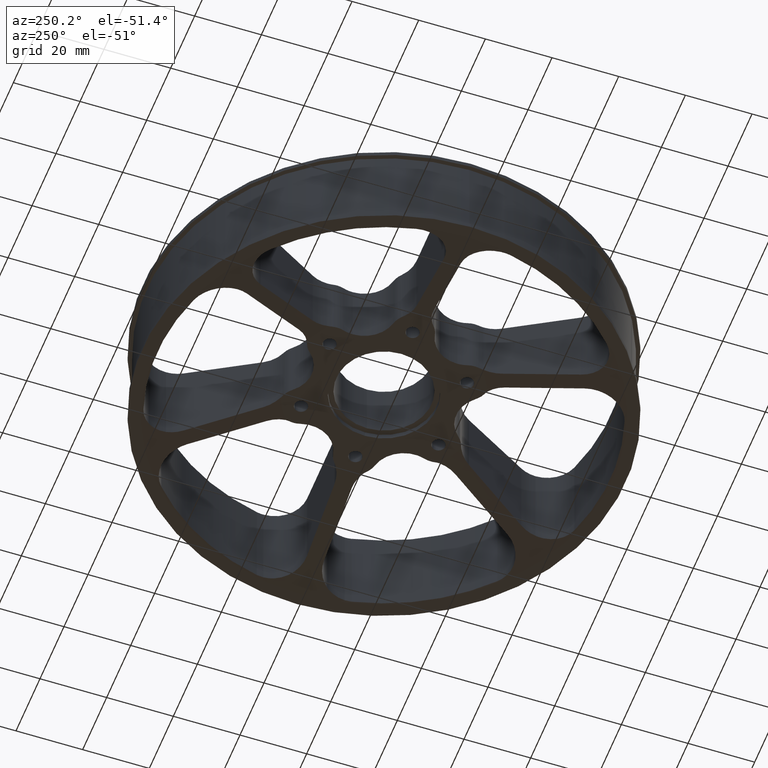
[diagram: clean part render]
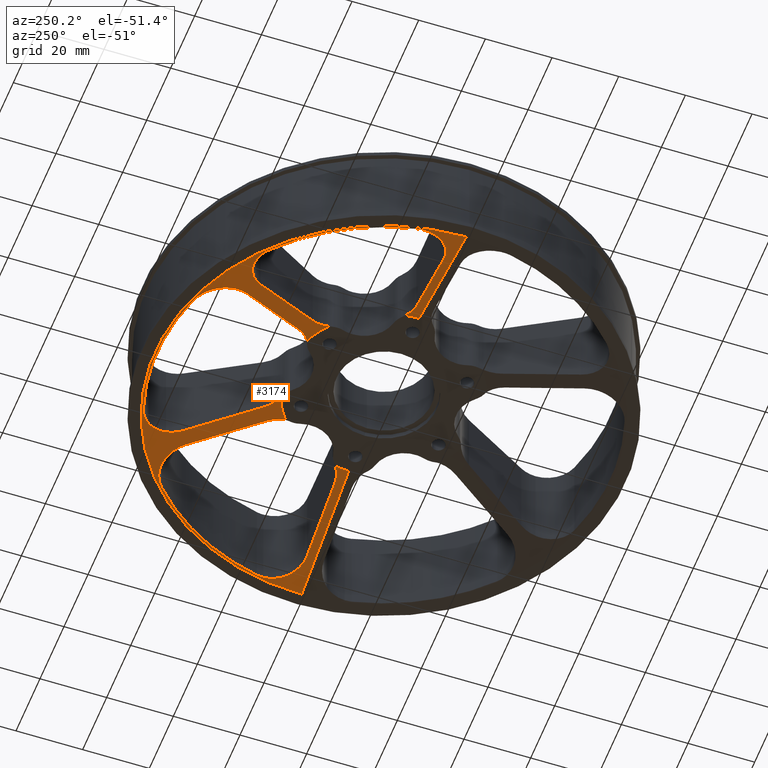
[diagram: same view with one face highlighted and labeled with its STEP entity id]
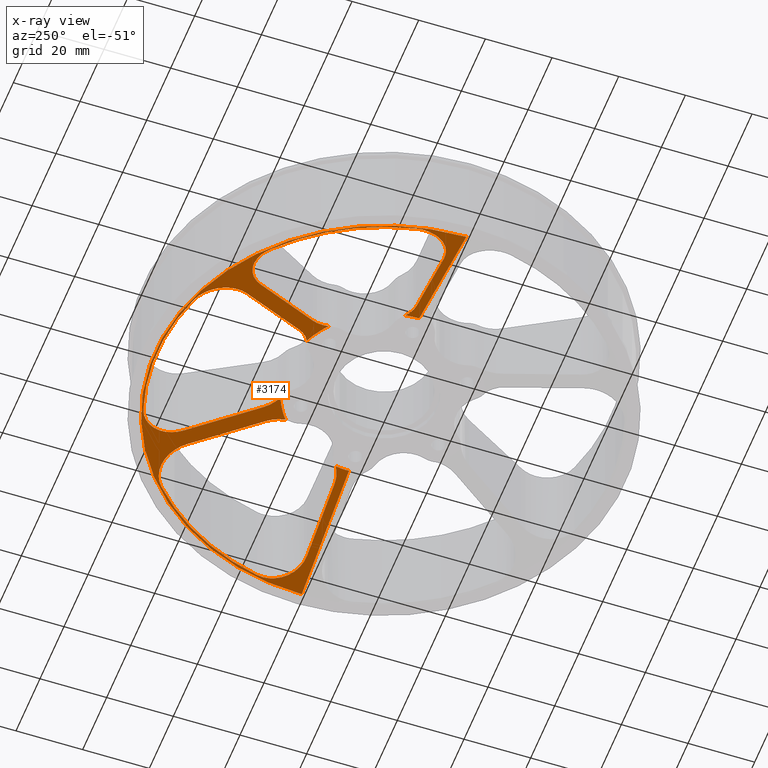
[diagram: x-ray of the same camera — body ghosted, the highlighted face saturated]
A machine part, auxiliary view. The second image highlights one B-rep face of the part: STEP entity #3174.
The next image is the same camera in x-ray: the body ghosted, the highlighted face saturated — about 0% of this face is hidden behind the body in this view.
In plain terms, the highlighted conical surface has half-angle 76.483 deg.
Its self-contained STEP definition (entity closure, byte-faithful):
#39 = CARTESIAN_POINT ( 'NONE',  ( -2.555788964295271803, 0.2606129922915251251, 0.03149898300721003935 ) ) ;
#41 = CARTESIAN_POINT ( 'NONE',  ( 1.381725332369270864, 2.050315321934899515, 0.05470492884179446735 ) ) ;
#73 = CARTESIAN_POINT ( 'NONE',  ( -2.571170166449327166, 0.2842102808367405475, 0.02723059828186738876 ) ) ;
#87 = CARTESIAN_POINT ( 'NONE',  ( -0.8233977797112138619, 2.545121037665328600, 0.006009615384616089247 ) ) ;
#112 = ORIENTED_EDGE ( 'NONE', *, *, #2547, .T. ) ;
#133 = CARTESIAN_POINT ( 'NONE',  ( 0.9141892401480412600, 2.502376442344148799, 0.008637521523666097031 ) ) ;
#140 = VERTEX_POINT ( 'NONE', #1234 ) ;
#147 = CARTESIAN_POINT ( 'NONE',  ( 4.558505688762623135E-17, 0.0000000000000000000, 0.3722302374804257186 ) ) ;
#155 = B_SPLINE_CURVE_WITH_KNOTS ( 'NONE', 3,
 ( #3402, #3881, #3978, #1712 ),
 .UNSPECIFIED., .F., .F.,
 ( 4, 4 ),
 ( 0.0003973831653409004355, 0.0008551513178443858601 ),
 .UNSPECIFIED. ) ;
#161 = VERTEX_POINT ( 'NONE', #1089 ) ;
#163 = CARTESIAN_POINT ( 'NONE',  ( -0.4476755617751262961, 1.076023273333025276, 0.3689003626230653587 ) ) ;
#176 = CARTESIAN_POINT ( 'NONE',  ( -1.345544115262072626, 0.1000000000000190598, 0.3246983252277153564 ) ) ;
#182 = ORIENTED_EDGE ( 'NONE', *, *, #2157, .T. ) ;
#186 = B_SPLINE_CURVE_WITH_KNOTS ( 'NONE', 3,
 ( #1582, #1717, #3155, #2220 ),
 .UNSPECIFIED., .F., .F.,
 ( 4, 4 ),
 ( 2.374831638880802619E-07, 0.02347532646394983810 ),
 .UNSPECIFIED. ) ;
#194 = CARTESIAN_POINT ( 'NONE',  ( -2.244242633941287313, 0.1000000000000318828, 0.1090217662803164567 ) ) ;
#202 = AXIS2_PLACEMENT_3D ( 'NONE', #3841, #535, #1473 ) ;
#203 = CARTESIAN_POINT ( 'NONE',  ( 2.620761240561458649, 0.5330270238740025812, 0.006157654140609909385 ) ) ;
#237 = ORIENTED_EDGE ( 'NONE', *, *, #2011, .T. ) ;
#256 = CARTESIAN_POINT ( 'NONE',  ( 2.341393350974212417, 0.1124217870913343936, 0.08555555233835339390 ) ) ;
#269 = CARTESIAN_POINT ( 'NONE',  ( 2.611705648250460143, 0.3799193324006487904, 0.01464270025597614808 ) ) ;
#274 = ORIENTED_EDGE ( 'NONE', *, *, #2128, .T. ) ;
#279 = B_SPLINE_CURVE_WITH_KNOTS ( 'NONE', 3,
 ( #2291, #2562, #1938, #517, #2256, #1796, #1680, #3945, #2889, #1362, #2292, #73, #39, #3350, #1021, #1346, #1814, #3208, #3433, #3760, #3099, #3631, #835, #521, #2773, #194 ),
 .UNSPECIFIED., .F., .F.,
 ( 4, 2, 2, 2, 2, 2, 2, 2, 2, 2, 2, 2, 4 ),
 ( 0.0000000000000000000, 0.002168415278682751714, 0.003252622918024124753, 0.004336830557365498225, 0.005421038196706870829, 0.006505245836048244301, 0.008673661114730996449, 0.009757868754072371656, 0.01084207639341374686, 0.01192628403275512207, 0.01301049167209649901, 0.01517890695077923381, 0.01734732222946196861 ),
 .UNSPECIFIED. ) ;
#280 = CARTESIAN_POINT ( 'NONE',  ( -0.7084642514475504305, 0.9252753857296316387, 0.3689046500688185071 ) ) ;
#282 = CIRCLE ( 'NONE', #847, 1.151522212081429908 ) ;
#287 = CARTESIAN_POINT ( 'NONE',  ( -1.273821146060780896, 0.1050872652487099962, 0.3418077900335013686 ) ) ;
#295 = CARTESIAN_POINT ( 'NONE',  ( -1.086278545085821667, 2.165913694325851679, 0.06657530022539948078 ) ) ;
#299 = ORIENTED_EDGE ( 'NONE', *, *, #2631, .T. ) ;
#314 = CARTESIAN_POINT ( 'NONE',  ( -1.368279890436731705, 2.044821805714164942, 0.05761208094328056778 ) ) ;
#326 = CARTESIAN_POINT ( 'NONE',  ( -1.747095290854518312, 2.021071717274952828, 0.006852893376929294726 ) ) ;
#329 = CIRCLE ( 'NONE', #1202, 2.700000000000000178 ) ;
#338 = EDGE_CURVE ( 'NONE', #1940, #2976, #3905, .T. ) ;
#342 = CARTESIAN_POINT ( 'NONE',  ( 1.574472117804343707, 2.082068098814433998, 0.02155503792358540519 ) ) ;
#378 = CARTESIAN_POINT ( 'NONE',  ( 1.344578831383624662, 2.031069387294142103, 0.06351105622040939536 ) ) ;
#392 = CARTESIAN_POINT ( 'NONE',  ( -1.052197010266879840, 2.343684665937414646, 0.03149898300720559152 ) ) ;
#401 = LINE ( 'NONE', #761, #2870 ) ;
#409 = CARTESIAN_POINT ( 'NONE',  ( -0.9590584314777077513, 2.467788912873300600, 0.01260446237046861442 ) ) ;
#413 = VERTEX_POINT ( 'NONE', #280 ) ;
#441 = CARTESIAN_POINT ( 'NONE',  ( -1.645127561281805484, 0.1000000000000233341, 0.2528811371054699442 ) ) ;
#444 = CARTESIAN_POINT ( 'NONE',  ( 0.7080257088821094724, 0.9257100458173149748, 0.3689003626230533683 ) ) ;
#446 = CARTESIAN_POINT ( 'NONE',  ( 1.140327317150179987, 0.1601780717763269801, 0.3722302374804254965 ) ) ;
#454 = CARTESIAN_POINT ( 'NONE',  ( -2.244242633941287313, 0.1000000000000318828, 0.1090217662803164567 ) ) ;
#479 = DIRECTION ( 'NONE',  ( 1.224646799147353454E-16, 0.0000000000000000000, 1.000000000000000000 ) ) ;
#499 = CARTESIAN_POINT ( 'NONE',  ( 2.700000000000000622, 3.306546357697854719E-16, -6.499484351137624458E-17 ) ) ;
#517 = CARTESIAN_POINT ( 'NONE',  ( -2.623992239664214576, 0.4601757916786723412, 0.008653585715786050320 ) ) ;
#518 = CARTESIAN_POINT ( 'NONE',  ( 2.329482037502598857, 0.1094814179886505062, 0.08844888549081507401 ) ) ;
#521 = CARTESIAN_POINT ( 'NONE',  ( -2.300342110028505083, 0.1031411890781242097, 0.09551724985832107939 ) ) ;
#535 = DIRECTION ( 'NONE',  ( 1.224646799147353454E-16, 0.0000000000000000000, 1.000000000000000000 ) ) ;
#551 = CARTESIAN_POINT ( 'NONE',  ( 2.624242633941351599, 0.4932295854747925645, 0.007173029918984138824 ) ) ;
#562 = EDGE_LOOP ( 'NONE', ( #2384, #1794, #3365, #867, #299, #3346, #1458, #2262, #3628, #1673, #237, #1472, #2190, #2006, #3245, #2533, #769, #3784, #3000, #1219, #112, #3469, #1724, #2314, #274, #2125, #1654, #182, #2564, #787, #3656 ) ) ;
#582 = VERTEX_POINT ( 'NONE', #1534 ) ;
#603 = VERTEX_POINT ( 'NONE', #499 ) ;
#606 = CARTESIAN_POINT ( 'NONE',  ( 2.589795439424716683, 0.3214145950295715370, 0.02172069477104322105 ) ) ;
#622 = CARTESIAN_POINT ( 'NONE',  ( -1.221825952857052977, 0.1202504314963653703, 0.3539155783737000238 ) ) ;
#634 = CARTESIAN_POINT ( 'NONE',  ( -1.222759472270234182, 1.917881531408228257, 0.1022805633555092797 ) ) ;
#636 = EDGE_CURVE ( 'NONE', #1872, #1767, #3505, .T. ) ;
#637 = AXIS2_PLACEMENT_3D ( 'NONE', #823, #3127, #2141 ) ;
#641 = B_SPLINE_CURVE_WITH_KNOTS ( 'NONE', 3,
 ( #936, #3199, #287, #622, #3664, #3467, #1391, #3334 ),
 .UNSPECIFIED., .F., .F.,
 ( 4, 2, 2, 4 ),
 ( 2.027963866919312708E-07, 0.002802592206002641612, 0.004203786910810616319, 0.005604981615618591026 ),
 .UNSPECIFIED. ) ;
#648 = CARTESIAN_POINT ( 'NONE',  ( -1.657391477001412872, 2.064548760629061341, 0.01262575695546966185 ) ) ;
#653 = VERTEX_POINT ( 'NONE', #1249 ) ;
#656 = CARTESIAN_POINT ( 'NONE',  ( -1.710199043874776947, 2.042518632831004766, 0.008673133990505066393 ) ) ;
#666 = CARTESIAN_POINT ( 'NONE',  ( 1.503591954028382194, 2.083071673645878086, 0.03149898300720527927 ) ) ;
#688 = CARTESIAN_POINT ( 'NONE',  ( 1.140327317150179987, 0.1601780717763269801, 0.3722302374804254965 ) ) ;
#694 = CARTESIAN_POINT ( 'NONE',  ( 1.239493944932458014, 1.940584110140775032, 0.09551724985830763182 ) ) ;
#699 = CIRCLE ( 'NONE', #202, 2.674999999999999378 ) ;
#709 = DIRECTION ( 'NONE',  ( 1.224646799147353454E-16, 0.0000000000000000000, 1.000000000000000000 ) ) ;
#732 = B_SPLINE_CURVE_WITH_KNOTS ( 'NONE', 3,
 ( #3164, #871, #4134, #2203 ),
 .UNSPECIFIED., .F., .F.,
 ( 4, 4 ),
 ( 0.01120379814011731277, 0.03467888712090324427 ),
 .UNSPECIFIED. ) ;
#751 = CARTESIAN_POINT ( 'NONE',  ( 0.5861695172526181219, 1.215275385729601254, 0.3246983252277149679 ) ) ;
#761 = CARTESIAN_POINT ( 'NONE',  ( -1.139999999999999902, 0.0000000000000000000, 0.3750000000000002776 ) ) ;
#769 = ORIENTED_EDGE ( 'NONE', *, *, #338, .T. ) ;
#770 = CARTESIAN_POINT ( 'NONE',  ( 1.086429123154184717, 2.203108526128852773, 0.05855579799661336099 ) ) ;
#787 = ORIENTED_EDGE ( 'NONE', *, *, #2903, .T. ) ;
#815 = VERTEX_POINT ( 'NONE', #3301 ) ;
#820 = EDGE_CURVE ( 'NONE', #2714, #1090, #279, .T. ) ;
#823 = CARTESIAN_POINT ( 'NONE',  ( 7.359656244876656570E-19, 0.0000000000000000000, 0.006009615384615988633 ) ) ;
#826 = CIRCLE ( 'NONE', #1073, 1.151522212081429908 ) ;
#835 = CARTESIAN_POINT ( 'NONE',  ( -2.354484225925956409, 0.1152857200719954872, 0.08237978376799647007 ) ) ;
#843 = CARTESIAN_POINT ( 'NONE',  ( 1.084931786460719305, 2.222682874519118279, 0.05449247516796908164 ) ) ;
#847 = AXIS2_PLACEMENT_3D ( 'NONE', #2243, #2595, #1508 ) ;
#860 = CARTESIAN_POINT ( 'NONE',  ( -1.792440584468713016, 1.985643913482338263, 0.006009615384616208943 ) ) ;
#867 = ORIENTED_EDGE ( 'NONE', *, *, #1664, .T. ) ;
#868 = CARTESIAN_POINT ( 'NONE',  ( 0.9091666662923786335, 1.374722858566401973, 0.2528809715653633217 ) ) ;
#871 = CARTESIAN_POINT ( 'NONE',  ( -0.8857410842204423984, 1.734148560221015156, 0.1809588936208282872 ) ) ;
#879 = CARTESIAN_POINT ( 'NONE',  ( 1.064825852095272918, 2.053001967520292848, 0.09309883668905098719 ) ) ;
#890 = CIRCLE ( 'NONE', #1126, 1.151522212081429908 ) ;
#891 = VERTEX_POINT ( 'NONE', #3072 ) ;
#903 = CARTESIAN_POINT ( 'NONE',  ( 2.269050318731649529, 0.09999999999998372691, 0.1030642917341123010 ) ) ;
#918 = CARTESIAN_POINT ( 'NONE',  ( 2.584390022171942025, 0.3101239939709281579, 0.02333883839362279472 ) ) ;
#922 = CARTESIAN_POINT ( 'NONE',  ( 0.9619943729157190981, 2.465503608340019248, 0.01286771057395602082 ) ) ;
#936 = CARTESIAN_POINT ( 'NONE',  ( -1.345544115262072626, 0.1000000000000190598, 0.3246983252277153564 ) ) ;
#937 = CARTESIAN_POINT ( 'NONE',  ( -1.208723857349086606, 1.893571133249328353, 0.1090217662803020376 ) ) ;
#960 = CARTESIAN_POINT ( 'NONE',  ( 1.086429123154184495, 2.183571133249294416, 0.06276058290869376832 ) ) ;
#963 = CARTESIAN_POINT ( 'NONE',  ( -1.588392053333445242, 2.081256917785137883, 0.01970530602920997007 ) ) ;
#989 = CARTESIAN_POINT ( 'NONE',  ( 1.671089567941404619, 2.059723331815689562, 0.01146111758689605416 ) ) ;
#1006 = VERTEX_POINT ( 'NONE', #3955 ) ;
#1007 = CARTESIAN_POINT ( 'NONE',  ( -1.085907858099138146, 2.207874167034138413, 0.05758182101409867193 ) ) ;
#1018 = CARTESIAN_POINT ( 'NONE',  ( 1.277082475238925152, 1.981400292425664844, 0.08237978376798460456 ) ) ;
#1021 = CARTESIAN_POINT ( 'NONE',  ( -2.519408256572005289, 0.2175422561166451552, 0.04116182191689277819 ) ) ;
#1033 = DIRECTION ( 'NONE',  ( -1.000000000000000000, -7.105427357601001859E-15, 1.224704050897968723E-16 ) ) ;
#1035 = CARTESIAN_POINT ( 'NONE',  ( -0.7088819378625879075, 0.9074633893932535500, 0.3722302374804257186 ) ) ;
#1042 = CARTESIAN_POINT ( 'NONE',  ( 0.7593745980094865899, 1.115275385729609159, 0.3246983252277150234 ) ) ;
#1043 = CARTESIAN_POINT ( 'NONE',  ( 0.9901614705514879544, 2.437136652271250092, 0.01669811749998362238 ) ) ;
#1053 = B_SPLINE_CURVE_WITH_KNOTS ( 'NONE', 3,
 ( #1937, #3883, #3061, #1131 ),
 .UNSPECIFIED., .F., .F.,
 ( 4, 4 ),
 ( 0.03513682589285246904, 0.05857677452416296809 ),
 .UNSPECIFIED. ) ;
#1073 = AXIS2_PLACEMENT_3D ( 'NONE', #1991, #3545, #3281 ) ;
#1089 = CARTESIAN_POINT ( 'NONE',  ( -0.7593745980094609438, 1.115275385729627144, 0.3246983252277151899 ) ) ;
#1090 = VERTEX_POINT ( 'NONE', #3796 ) ;
#1093 = CARTESIAN_POINT ( 'NONE',  ( 1.086429123154184495, 2.183571133249294416, 0.06276058290869376832 ) ) ;
#1095 = CARTESIAN_POINT ( 'NONE',  ( 1.054667861080543778, 2.336953425988994582, 0.03272314577106618522 ) ) ;
#1096 = VERTEX_POINT ( 'NONE', #2841 ) ;
#1126 = AXIS2_PLACEMENT_3D ( 'NONE', #3806, #3468, #2465 ) ;
#1130 = EDGE_CURVE ( 'NONE', #3830, #582, #3840, .T. ) ;
#1131 = CARTESIAN_POINT ( 'NONE',  ( 2.244242633941349041, 0.09999999999998378242, 0.1090217662803016074 ) ) ;
#1139 = CIRCLE ( 'NONE', #3460, 2.674999999999999378 ) ;
#1154 = DIRECTION ( 'NONE',  ( -0.9723023748042558534, 0.0000000000000000000, -0.2337265324048689308 ) ) ;
#1165 = B_SPLINE_CURVE_WITH_KNOTS ( 'NONE', 3,
 ( #751, #2351, #1721, #3314 ),
 .UNSPECIFIED., .F., .F.,
 ( 4, 4 ),
 ( 2.374831638847536988E-07, 0.02347532646394984157 ),
 .UNSPECIFIED. ) ;
#1175 = CARTESIAN_POINT ( 'NONE',  ( 0.8233977797113042341, 2.545121037665299291, 0.006009615384615888886 ) ) ;
#1187 = CARTESIAN_POINT ( 'NONE',  ( -1.151522212081429908, 0.0000000000000000000, 0.3722302374804258851 ) ) ;
#1190 = CARTESIAN_POINT ( 'NONE',  ( 4.592425496802577300E-17, 0.0000000000000000000, 0.3750000000000001665 ) ) ;
#1202 = AXIS2_PLACEMENT_3D ( 'NONE', #1816, #3534, #3200 ) ;
#1218 = CARTESIAN_POINT ( 'NONE',  ( 1.256060949214086842, 0.1102402044935202607, 0.3459443339627557013 ) ) ;
#1219 = ORIENTED_EDGE ( 'NONE', *, *, #2819, .T. ) ;
#1227 = CARTESIAN_POINT ( 'NONE',  ( 1.792440584468755649, 1.985643913482299183, 0.006009615384615769190 ) ) ;
#1228 = VERTEX_POINT ( 'NONE', #2937 ) ;
#1230 = CARTESIAN_POINT ( 'NONE',  ( 2.493144026092791510, 0.1925905895674134283, 0.04794196000281365777 ) ) ;
#1231 = B_SPLINE_CURVE_WITH_KNOTS ( 'NONE', 3,
 ( #454, #1939, #441, #3762 ),
 .UNSPECIFIED., .F., .F.,
 ( 4, 4 ),
 ( 0.07311557283823139075, 0.09659070307451070314 ),
 .UNSPECIFIED. ) ;
#1234 = CARTESIAN_POINT ( 'NONE',  ( 0.5861695172526181219, 1.215275385729601254, 0.3246983252277149679 ) ) ;
#1236 = CARTESIAN_POINT ( 'NONE',  ( 1.074200106125244414, 2.281203584867760092, 0.04292510599061973020 ) ) ;
#1237 = CARTESIAN_POINT ( 'NONE',  ( 1.086429123154184495, 2.183571133249294416, 0.06276058290869376832 ) ) ;
#1245 = CARTESIAN_POINT ( 'NONE',  ( 2.565835537136702094, 0.2771843271920144680, 0.02866674391365928512 ) ) ;
#1249 = CARTESIAN_POINT ( 'NONE',  ( 2.615838364180005815, 0.5594771241829875619, 0.006009615384615668576 ) ) ;
#1261 = CARTESIAN_POINT ( 'NONE',  ( 0.4314453792875962423, 1.067641461169568595, 0.3722302374804256075 ) ) ;
#1262 = DIRECTION ( 'NONE',  ( -1.224646799147353454E-16, -0.0000000000000000000, -1.000000000000000000 ) ) ;
#1274 = CARTESIAN_POINT ( 'NONE',  ( 0.4314453792875962423, 1.067641461169568595, 0.3722302374804256075 ) ) ;
#1287 = CARTESIAN_POINT ( 'NONE',  ( -0.8767949800902229418, 2.524432577122647903, 0.006678401742229601173 ) ) ;
#1289 = CARTESIAN_POINT ( 'NONE',  ( 1.077712681762480473, 2.100971800952537993, 0.08142859237052434140 ) ) ;
#1290 = CARTESIAN_POINT ( 'NONE',  ( -1.531552464191710428, 2.083784013882288733, 0.02739028061926878158 ) ) ;
#1313 = CARTESIAN_POINT ( 'NONE',  ( 1.657638673986983502, 2.064463421810022847, 0.01260446237046811309 ) ) ;
#1323 = CARTESIAN_POINT ( 'NONE',  ( 0.7084858649700268574, 0.9438525127013090987, 0.3653517119369740773 ) ) ;
#1331 = CARTESIAN_POINT ( 'NONE',  ( -1.080937959262898485, 2.249436021509337635, 0.04911969333429189871 ) ) ;
#1346 = CARTESIAN_POINT ( 'NONE',  ( -2.499128953314377011, 0.1978065355141498116, 0.04641134710570669203 ) ) ;
#1352 = CARTESIAN_POINT ( 'NONE',  ( 1.035518776592268209, 1.993571133249289140, 0.1090217662803016352 ) ) ;
#1362 = CARTESIAN_POINT ( 'NONE',  ( -2.596028397052802195, 0.3356126883065520539, 0.01980712311060918440 ) ) ;
#1366 = CARTESIAN_POINT ( 'NONE',  ( 0.5325596656303365206, 1.142900801905402774, 0.3459443311389592268 ) ) ;
#1391 = CARTESIAN_POINT ( 'NONE',  ( -1.155701270126328728, 0.1503132278564512370, 0.3689003627380586514 ) ) ;
#1392 = B_SPLINE_CURVE_WITH_KNOTS ( 'NONE', 3,
 ( #3149, #903, #2512, #518, #256, #2193, #4123, #1867, #3166, #1554, #3494, #1230, #3828, #2768, #3183, #1245, #3511, #918, #606, #2524, #269, #2207, #4137, #1880 ),
 .UNSPECIFIED., .F., .F.,
 ( 4, 2, 2, 2, 2, 2, 2, 2, 2, 2, 2, 4 ),
 ( 7.269816092100958512E-18, 0.001916703983936893620, 0.002875055975905326661, 0.003833407967873759484, 0.005750111951810624698, 0.006708463943779057088, 0.007666815935747490346, 0.009583519919684355126, 0.01054187191165278058, 0.01150022390362120256, 0.01341692788755806387, 0.01533363187149492692 ),
 .UNSPECIFIED. ) ;
#1403 = CARTESIAN_POINT ( 'NONE',  ( -1.035518776592196488, 1.993571133249324667, 0.1090217662803022319 ) ) ;
#1420 = DIRECTION ( 'NONE',  ( -1.000000000000000000, -2.664535259100375697E-15, 1.186189881967765580E-16 ) ) ;
#1421 = CARTESIAN_POINT ( 'NONE',  ( 0.8614897534448133776, 2.531073283054637191, 0.006347703254778879096 ) ) ;
#1429 = CARTESIAN_POINT ( 'NONE',  ( -0.5861695172525729358, 1.215275385729623014, 0.3246983252277151899 ) ) ;
#1448 = CARTESIAN_POINT ( 'NONE',  ( -0.7300619304692705924, 1.055897760618339953, 0.3404668134742429575 ) ) ;
#1458 = ORIENTED_EDGE ( 'NONE', *, *, #3843, .T. ) ;
#1460 = VERTEX_POINT ( 'NONE', #860 ) ;
#1462 = CARTESIAN_POINT ( 'NONE',  ( 1.309434701709074389, 0.1012914432548026600, 0.3333315988734063540 ) ) ;
#1472 = ORIENTED_EDGE ( 'NONE', *, *, #2210, .T. ) ;
#1473 = DIRECTION ( 'NONE',  ( -1.000000000000000000, 7.105427357601001859E-15, 1.224704050897968723E-16 ) ) ;
#1491 = CARTESIAN_POINT ( 'NONE',  ( 1.036333790412315325, 2.372417308647428946, 0.02671221852332348809 ) ) ;
#1508 = DIRECTION ( 'NONE',  ( -1.000000000000000000, 0.0000000000000000000, 1.186189881967765580E-16 ) ) ;
#1533 = EDGE_CURVE ( 'NONE', #2976, #1872, #732, .T. ) ;
#1534 = CARTESIAN_POINT ( 'NONE',  ( 0.7088819378626094458, 0.9074633893932365636, 0.3722302374804256075 ) ) ;
#1540 = VERTEX_POINT ( 'NONE', #1227 ) ;
#1554 = CARTESIAN_POINT ( 'NONE',  ( 2.463722134100568617, 0.1695474053259844738, 0.05539864163893562510 ) ) ;
#1566 = CARTESIAN_POINT ( 'NONE',  ( 0.7412398138127331837, 1.083865018116535905, 0.3333929926101628638 ) ) ;
#1582 = CARTESIAN_POINT ( 'NONE',  ( -0.7593745980094609438, 1.115275385729627144, 0.3246983252277151899 ) ) ;
#1585 = VERTEX_POINT ( 'NONE', #2535 ) ;
#1587 = CARTESIAN_POINT ( 'NONE',  ( -1.060848165096077267, 2.043725299218898783, 0.09551724985830808978 ) ) ;
#1596 = CARTESIAN_POINT ( 'NONE',  ( -1.343822811761050451, 2.031509597719318272, 0.06352635243648648011 ) ) ;
#1609 = CARTESIAN_POINT ( 'NONE',  ( -1.489240781014748105, 2.080714945174424457, 0.03395844962253762034 ) ) ;
#1611 = CARTESIAN_POINT ( 'NONE',  ( 1.058946164977367488, 1.634148560220995083, 0.1809588936208280097 ) ) ;
#1634 = CARTESIAN_POINT ( 'NONE',  ( 1.710520045632442310, 2.042356043043110692, 0.008653585715784943566 ) ) ;
#1642 = CARTESIAN_POINT ( 'NONE',  ( 0.7150529029939101111, 0.9980070904861664260, 0.3539155801993228434 ) ) ;
#1652 = CARTESIAN_POINT ( 'NONE',  ( -1.082767376362038014, 2.123913835814892792, 0.07597018140800188002 ) ) ;
#1654 = ORIENTED_EDGE ( 'NONE', *, *, #2060, .T. ) ;
#1664 = EDGE_CURVE ( 'NONE', #3277, #815, #1053, .T. ) ;
#1667 = CARTESIAN_POINT ( 'NONE',  ( -1.086668270553784010, 2.179974119016095280, 0.06351105622040970067 ) ) ;
#1673 = ORIENTED_EDGE ( 'NONE', *, *, #1130, .T. ) ;
#1676 = CARTESIAN_POINT ( 'NONE',  ( -1.039451760003318403, 2.368803822016174454, 0.02723059828186362788 ) ) ;
#1680 = CARTESIAN_POINT ( 'NONE',  ( -2.616697105464713236, 0.4033254910632784740, 0.01260446237046981485 ) ) ;
#1682 = CARTESIAN_POINT ( 'NONE',  ( 1.273795741522969260, 0.1064009748875603678, 0.3417726663184245672 ) ) ;
#1684 = CARTESIAN_POINT ( 'NONE',  ( 0.4931610981416740813, 1.105302345974090050, 0.3581113411067548546 ) ) ;
#1706 = B_SPLINE_CURVE_WITH_KNOTS ( 'NONE', 3,
 ( #1352, #3292, #879, #1289, #4112, #3225, #3139, #960 ),
 .UNSPECIFIED., .F., .F.,
 ( 4, 2, 2, 4 ),
 ( 7.949501638480626889E-18, 0.002582391569115759580, 0.003873587353673636768, 0.005164783138231513956 ),
 .UNSPECIFIED. ) ;
#1712 = CARTESIAN_POINT ( 'NONE',  ( -0.7084642514475504305, 0.9252753857296316387, 0.3689046500688185071 ) ) ;
#1717 = CARTESIAN_POINT ( 'NONE',  ( -0.9091666662923481024, 1.374722858566422845, 0.2528809715653633772 ) ) ;
#1721 = CARTESIAN_POINT ( 'NONE',  ( 0.8857410842205052370, 1.734148560220984292, 0.1809588936208278154 ) ) ;
#1724 = ORIENTED_EDGE ( 'NONE', *, *, #2179, .T. ) ;
#1728 = CARTESIAN_POINT ( 'NONE',  ( 0.8233977797113042341, 2.545121037665299291, 0.006009615384615888886 ) ) ;
#1746 = CARTESIAN_POINT ( 'NONE',  ( 1.171029754925200894, 0.1404775590272032693, 0.3655803360377239963 ) ) ;
#1767 = VERTEX_POINT ( 'NONE', #1903 ) ;
#1772 = CARTESIAN_POINT ( 'NONE',  ( -0.4926653701945993280, 1.106564567344613392, 0.3578734881116413247 ) ) ;
#1789 = CARTESIAN_POINT ( 'NONE',  ( 1.345544115262075291, 0.09999999999998830658, 0.3246983252277149123 ) ) ;
#1794 = ORIENTED_EDGE ( 'NONE', *, *, #3820, .T. ) ;
#1796 = CARTESIAN_POINT ( 'NONE',  ( -2.619317514090607535, 0.4173443519285852110, 0.01146111758689765184 ) ) ;
#1810 = CARTESIAN_POINT ( 'NONE',  ( -1.049544605678444542, 2.017864581844984517, 0.1022852634202533750 ) ) ;
#1814 = CARTESIAN_POINT ( 'NONE',  ( -2.488537718446307334, 0.1885982781180611523, 0.04911969333429887924 ) ) ;
#1816 = CARTESIAN_POINT ( 'NONE',  ( 2.549591630525159028E-32, 0.0000000000000000000, 2.081899558550500773E-16 ) ) ;
#1842 = CARTESIAN_POINT ( 'NONE',  ( 0.7593745980094865899, 1.115275385729609159, 0.3246983252277150234 ) ) ;
#1867 = CARTESIAN_POINT ( 'NONE',  ( 2.411104727554509886, 0.1377013564252795863, 0.06850480650287543716 ) ) ;
#1872 = VERTEX_POINT ( 'NONE', #1429 ) ;
#1880 = CARTESIAN_POINT ( 'NONE',  ( 2.624242633941350711, 0.4799999999999837730, 0.007745225043631117495 ) ) ;
#1883 = CARTESIAN_POINT ( 'NONE',  ( 1.062141725874128584, 2.318686401782258155, 0.03597412338323707770 ) ) ;
#1884 = CARTESIAN_POINT ( 'NONE',  ( -0.7084642514475505415, 0.9585563269289382182, 0.3625525926167544322 ) ) ;
#1903 = CARTESIAN_POINT ( 'NONE',  ( -0.4314453792875557192, 1.067641461169585027, 0.3722302374804257186 ) ) ;
#1910 = CARTESIAN_POINT ( 'NONE',  ( 1.448101248479610970, 2.073100424637317474, 0.04116182191688643605 ) ) ;
#1917 = CARTESIAN_POINT ( 'NONE',  ( -1.298426810186336100, 1.999021319697866117, 0.07603577902341975003 ) ) ;
#1931 = CARTESIAN_POINT ( 'NONE',  ( -1.447888800486290872, 2.073044976836471154, 0.04120193615354847405 ) ) ;
#1937 = CARTESIAN_POINT ( 'NONE',  ( 1.345544115262075291, 0.09999999999998830658, 0.3246983252277149123 ) ) ;
#1938 = CARTESIAN_POINT ( 'NONE',  ( -2.624620231974345685, 0.5028895618925083300, 0.006678401742229975874 ) ) ;
#1939 = CARTESIAN_POINT ( 'NONE',  ( -1.944686834526107910, 0.1000000000000276223, 0.1809589932027218795 ) ) ;
#1940 = VERTEX_POINT ( 'NONE', #87 ) ;
#1959 = CARTESIAN_POINT ( 'NONE',  ( 1.747825251884096209, 2.021543015230148566, 0.006678401742229207391 ) ) ;
#1972 = CARTESIAN_POINT ( 'NONE',  ( 1.420869961447045471, 2.065405893146413874, 0.04641134710569962823 ) ) ;
#1982 = AXIS2_PLACEMENT_3D ( 'NONE', #1190, #1262, #3439 ) ;
#1985 = CARTESIAN_POINT ( 'NONE',  ( 1.203800453185186470, 0.1255611367571705939, 0.3581113425542530315 ) ) ;
#1991 = CARTESIAN_POINT ( 'NONE',  ( 4.558505688762623135E-17, 0.0000000000000000000, 0.3722302374804257186 ) ) ;
#2001 = CARTESIAN_POINT ( 'NONE',  ( -1.067055953988727657, 2.304178896926665221, 0.03864379365982673759 ) ) ;
#2006 = ORIENTED_EDGE ( 'NONE', *, *, #3964, .T. ) ;
#2011 = EDGE_CURVE ( 'NONE', #582, #3179, #826, .T. ) ;
#2032 = VERTEX_POINT ( 'NONE', #1035 ) ;
#2060 = EDGE_CURVE ( 'NONE', #1090, #3530, #1231, .T. ) ;
#2090 = CARTESIAN_POINT ( 'NONE',  ( -0.5067730420216567389, 1.118257524286206950, 0.3539155801991348271 ) ) ;
#2092 = EDGE_CURVE ( 'NONE', #1540, #1006, #3816, .T. ) ;
#2125 = ORIENTED_EDGE ( 'NONE', *, *, #820, .T. ) ;
#2128 = EDGE_CURVE ( 'NONE', #1460, #2714, #1139, .T. ) ;
#2133 = B_SPLINE_CURVE_WITH_KNOTS ( 'NONE', 3,
 ( #3909, #1884, #2372, #1448, #3831, #3329 ),
 .UNSPECIFIED., .F., .F.,
 ( 4, 2, 4 ),
 ( 0.0008551513178443858601, 0.003428076719515962822, 0.006001002121187539243 ),
 .UNSPECIFIED. ) ;
#2138 = CARTESIAN_POINT ( 'NONE',  ( 2.618648427263342349, 0.5463386588169680813, 0.006009615384615545411 ) ) ;
#2141 = DIRECTION ( 'NONE',  ( -1.000000000000000000, 0.0000000000000000000, 1.224704050897968723E-16 ) ) ;
#2147 = CARTESIAN_POINT ( 'NONE',  ( 1.041217323572406706, 2.363615426245173623, 0.02817790753336516657 ) ) ;
#2157 = EDGE_CURVE ( 'NONE', #3530, #1585, #641, .T. ) ;
#2166 = CARTESIAN_POINT ( 'NONE',  ( -0.9892105328527208696, 2.437806444004627870, 0.01662676016590337869 ) ) ;
#2171 = CARTESIAN_POINT ( 'NONE',  ( 1.208723857349127240, 1.893571133249301708, 0.1090217662803018989 ) ) ;
#2179 = EDGE_CURVE ( 'NONE', #161, #3895, #186, .T. ) ;
#2190 = ORIENTED_EDGE ( 'NONE', *, *, #2250, .T. ) ;
#2193 = CARTESIAN_POINT ( 'NONE',  ( 2.365015921825373457, 0.1194922783645120529, 0.07980028110770152894 ) ) ;
#2203 = CARTESIAN_POINT ( 'NONE',  ( -0.5861695172525729358, 1.215275385729623014, 0.3246983252277151899 ) ) ;
#2207 = CARTESIAN_POINT ( 'NONE',  ( 2.621756639412093026, 0.4297169751734875032, 0.01042487641880511864 ) ) ;
#2210 = EDGE_CURVE ( 'NONE', #3179, #140, #4049, .T. ) ;
#2220 = CARTESIAN_POINT ( 'NONE',  ( -1.208723857349086606, 1.893571133249328353, 0.1090217662803020376 ) ) ;
#2240 = CARTESIAN_POINT ( 'NONE',  ( -1.407411597831922379, 2.060773818806591606, 0.04915793615369580538 ) ) ;
#2243 = CARTESIAN_POINT ( 'NONE',  ( 4.558505688762634845E-17, 0.0000000000000000000, 0.3722302374804262737 ) ) ;
#2250 = EDGE_CURVE ( 'NONE', #140, #1096, #1165, .T. ) ;
#2251 = CARTESIAN_POINT ( 'NONE',  ( -1.770420596496611099, 2.004402361685691858, 0.006180855580384354148 ) ) ;
#2256 = CARTESIAN_POINT ( 'NONE',  ( -2.622980774888219901, 0.4458779170281225168, 0.009477793478382545364 ) ) ;
#2260 = CARTESIAN_POINT ( 'NONE',  ( 1.531718406445995662, 2.084593541179424303, 0.02723059828186327747 ) ) ;
#2262 = ORIENTED_EDGE ( 'NONE', *, *, #2092, .T. ) ;
#2279 = DIRECTION ( 'NONE',  ( 0.9723023748042558534, 1.190726991107402124E-16, -0.2337265324048691528 ) ) ;
#2291 = CARTESIAN_POINT ( 'NONE',  ( -2.615838364179993825, 0.5594771241830437392, 0.006009615384616309557 ) ) ;
#2292 = CARTESIAN_POINT ( 'NONE',  ( -2.590359924884627851, 0.3224988021616346234, 0.02155503792358862830 ) ) ;
#2293 = CARTESIAN_POINT ( 'NONE',  ( 1.369121187961378494, 2.044360874800086769, 0.05758182101409835968 ) ) ;
#2306 = CARTESIAN_POINT ( 'NONE',  ( -0.5459023428338976025, 1.155705115592982724, 0.3418077866013436439 ) ) ;
#2312 = CARTESIAN_POINT ( 'NONE',  ( 2.624242633941350711, 0.4799999999999837730, 0.007745225043631117495 ) ) ;
#2314 = ORIENTED_EDGE ( 'NONE', *, *, #3178, .T. ) ;
#2324 = CARTESIAN_POINT ( 'NONE',  ( 0.5861695172526181219, 1.215275385729601254, 0.3246983252277149679 ) ) ;
#2335 = FACE_OUTER_BOUND ( 'NONE', #562, .T. ) ;
#2347 = CARTESIAN_POINT ( 'NONE',  ( 0.4638577458335942927, 1.084380297493138023, 0.3655803353914180431 ) ) ;
#2351 = CARTESIAN_POINT ( 'NONE',  ( 0.7359615855355133851, 1.474722858566392514, 0.2528809715653632106 ) ) ;
#2372 = CARTESIAN_POINT ( 'NONE',  ( -0.7127769856240526725, 0.9914078800289441995, 0.3555320830738376570 ) ) ;
#2373 = CARTESIAN_POINT ( 'NONE',  ( 1.003004753666665083, 2.421977824761690101, 0.01889564882078185321 ) ) ;
#2384 = ORIENTED_EDGE ( 'NONE', *, *, #2934, .F. ) ;
#2390 = CARTESIAN_POINT ( 'NONE',  ( 1.771010582761333385, 2.004988774121615247, 0.006009615384615776996 ) ) ;
#2398 = CARTESIAN_POINT ( 'NONE',  ( -1.077401750687054127, 2.096686012497665175, 0.08237978376798504865 ) ) ;
#2420 = CARTESIAN_POINT ( 'NONE',  ( -0.4631573209401607660, 1.085493013636925186, 0.3653517119369603661 ) ) ;
#2421 = CIRCLE ( 'NONE', #637, 2.674999999999999378 ) ;
#2444 = CARTESIAN_POINT ( 'NONE',  ( -0.5680347330550156171, 1.183865018115155099, 0.3333929926105489439 ) ) ;
#2452 = VECTOR ( 'NONE', #2279, 39.37007874015748143 ) ;
#2454 = B_SPLINE_CURVE_WITH_KNOTS ( 'NONE', 3,
 ( #2171, #1611, #868, #1842 ),
 .UNSPECIFIED., .F., .F.,
 ( 4, 4 ),
 ( 0.01120379814011729716, 0.03467888712090323733 ),
 .UNSPECIFIED. ) ;
#2458 = CARTESIAN_POINT ( 'NONE',  ( 2.623553718989147132, 0.5064806939475891001, 0.006739938895971522674 ) ) ;
#2465 = DIRECTION ( 'NONE',  ( -1.000000000000000000, 7.105427357601001859E-15, 1.186189881967765580E-16 ) ) ;
#2512 = CARTESIAN_POINT ( 'NONE',  ( 2.293455398663861278, 0.1024060303327864047, 0.09717843264356713917 ) ) ;
#2524 = CARTESIAN_POINT ( 'NONE',  ( 2.604300270371131987, 0.3559726375479228544, 0.01720502652527373250 ) ) ;
#2526 = EDGE_CURVE ( 'NONE', #1006, #3830, #2454, .T. ) ;
#2528 = CARTESIAN_POINT ( 'NONE',  ( 1.327409411418778884, 0.09999999999998837596, 0.3290456396563282704 ) ) ;
#2533 = ORIENTED_EDGE ( 'NONE', *, *, #3880, .T. ) ;
#2535 = CARTESIAN_POINT ( 'NONE',  ( -1.140327317150176212, 0.1601780717763539863, 0.3722302374804257741 ) ) ;
#2547 = EDGE_CURVE ( 'NONE', #2032, #413, #155, .T. ) ;
#2560 = B_SPLINE_CURVE_WITH_KNOTS ( 'NONE', 3,
 ( #937, #634, #3213, #2883, #4173, #1917, #3870, #1596, #314, #2240, #4188, #1931, #3878, #1609, #3550, #1290, #3227, #963, #2897, #648, #2567, #2912, #656, #2579, #326, #2251, #3240, #3326 ),
 .UNSPECIFIED., .F., .F.,
 ( 4, 2, 2, 2, 2, 2, 2, 2, 2, 2, 2, 2, 2, 4 ),
 ( 0.0000000000000000000, 0.002168853664803621975, 0.003253280497205425156, 0.004337707329607228338, 0.006506560994410823424, 0.007590987826812610993, 0.008675414659214399429, 0.009759841491616186998, 0.01084426832401797457, 0.01301312198882154970, 0.01409754882122334595, 0.01518197565362514045, 0.01626640248602693670, 0.01735082931842873294 ),
 .UNSPECIFIED. ) ;
#2562 = CARTESIAN_POINT ( 'NONE',  ( -2.621876504072599978, 0.5312457679816121603, 0.006009615384616306955 ) ) ;
#2564 = ORIENTED_EDGE ( 'NONE', *, *, #3071, .T. ) ;
#2567 = CARTESIAN_POINT ( 'NONE',  ( -1.671035995862314216, 2.059739359692334570, 0.01146611840192785121 ) ) ;
#2575 = EDGE_CURVE ( 'NONE', #3256, #653, #4018, .T. ) ;
#2579 = CARTESIAN_POINT ( 'NONE',  ( -1.735047257989923875, 2.028688079062567873, 0.007352468114572211985 ) ) ;
#2591 = CARTESIAN_POINT ( 'NONE',  ( 1.461949482608110751, 2.076187011877028255, 0.03864379365982644615 ) ) ;
#2595 = DIRECTION ( 'NONE',  ( 1.224646799147353454E-16, 0.0000000000000000000, 1.000000000000000000 ) ) ;
#2619 = CARTESIAN_POINT ( 'NONE',  ( 1.332597009147856504, 2.023701662793262912, 0.06657530022539905057 ) ) ;
#2621 = CARTESIAN_POINT ( 'NONE',  ( 1.345544115262075291, 0.09999999999998830658, 0.3246983252277149123 ) ) ;
#2631 = EDGE_CURVE ( 'NONE', #815, #3256, #1392, .T. ) ;
#2642 = CARTESIAN_POINT ( 'NONE',  ( 0.9465493905402148078, 2.478771655794274498, 0.01123086356925850210 ) ) ;
#2690 = CARTESIAN_POINT ( 'NONE',  ( -1.035518776592196488, 1.993571133249324667, 0.1090217662803022319 ) ) ;
#2697 = CARTESIAN_POINT ( 'NONE',  ( 1.078797038918623219, 2.261904585519354249, 0.04664171059715475909 ) ) ;
#2712 = LINE ( 'NONE', #3389, #2452 ) ;
#2714 = VERTEX_POINT ( 'NONE', #3725 ) ;
#2768 = CARTESIAN_POINT ( 'NONE',  ( 2.528943985506955983, 0.2270946532870939949, 0.03868509573959070386 ) ) ;
#2773 = CARTESIAN_POINT ( 'NONE',  ( -2.272294292113783420, 0.1000000000000278028, 0.1022852634202675998 ) ) ;
#2777 = CARTESIAN_POINT ( 'NONE',  ( 1.020440763945381413, 2.397803257919151498, 0.02262143834437498058 ) ) ;
#2819 = EDGE_CURVE ( 'NONE', #1767, #2032, #3637, .T. ) ;
#2841 = CARTESIAN_POINT ( 'NONE',  ( 1.035518776592268209, 1.993571133249289140, 0.1090217662803016352 ) ) ;
#2846 = CARTESIAN_POINT ( 'NONE',  ( -1.071307008092392099, 2.290642680753975036, 0.04116182191688678299 ) ) ;
#2857 = VERTEX_POINT ( 'NONE', #1237 ) ;
#2870 = VECTOR ( 'NONE', #1154, 39.37007874015748854 ) ;
#2872 = CARTESIAN_POINT ( 'NONE',  ( 0.5771021681831827177, 1.199570276451377149, 0.3290456382888431452 ) ) ;
#2883 = CARTESIAN_POINT ( 'NONE',  ( -1.267331801487563636, 1.970838442980868965, 0.08578245652131949450 ) ) ;
#2889 = CARTESIAN_POINT ( 'NONE',  ( -2.605807576443770035, 0.3622217708606937370, 0.01662676016590531811 ) ) ;
#2893 = VERTEX_POINT ( 'NONE', #446 ) ;
#2897 = CARTESIAN_POINT ( 'NONE',  ( -1.616265935477184224, 2.076478852331124170, 0.01653074657228812902 ) ) ;
#2903 = EDGE_CURVE ( 'NONE', #2948, #891, #401, .T. ) ;
#2907 = CARTESIAN_POINT ( 'NONE',  ( -0.9482279461491800454, 2.477067683744273996, 0.01146111758689642192 ) ) ;
#2912 = CARTESIAN_POINT ( 'NONE',  ( -1.697398836268452005, 2.048732776466223093, 0.009494228455442942430 ) ) ;
#2922 = CARTESIAN_POINT ( 'NONE',  ( 1.588663312432264663, 2.080420196640258457, 0.01980712311060622843 ) ) ;
#2934 = EDGE_CURVE ( 'NONE', #1228, #603, #2712, .T. ) ;
#2937 = CARTESIAN_POINT ( 'NONE',  ( 1.151522212081430130, 2.358377174435229028E-16, 0.3722302374804261071 ) ) ;
#2948 = VERTEX_POINT ( 'NONE', #1187 ) ;
#2953 = CARTESIAN_POINT ( 'NONE',  ( -0.9253487843112508937, 2.494506943205458516, 0.009477793478381646777 ) ) ;
#2954 = CARTESIAN_POINT ( 'NONE',  ( 1.297979649083905063, 1.999660972226012134, 0.07597018140800147756 ) ) ;
#2973 = CARTESIAN_POINT ( 'NONE',  ( 7.359656244876656570E-19, 0.0000000000000000000, 0.006009615384615988633 ) ) ;
#2976 = VERTEX_POINT ( 'NONE', #1403 ) ;
#2983 = CARTESIAN_POINT ( 'NONE',  ( 0.8971778035947771679, 2.512837718398219344, 0.007662424957215690537 ) ) ;
#2985 = CARTESIAN_POINT ( 'NONE',  ( -0.9134721940317478417, 2.502531834721778203, 0.008653585715785332144 ) ) ;
#2989 = VERTEX_POINT ( 'NONE', #1728 ) ;
#3000 = ORIENTED_EDGE ( 'NONE', *, *, #636, .T. ) ;
#3061 = CARTESIAN_POINT ( 'NONE',  ( 1.944687247254168305, 0.09999999999998529510, 0.1809588940875915264 ) ) ;
#3071 = EDGE_CURVE ( 'NONE', #1585, #2948, #890, .T. ) ;
#3072 = CARTESIAN_POINT ( 'NONE',  ( -2.700000000000000622, 0.0000000000000000000, 5.496709550630829796E-16 ) ) ;
#3099 = CARTESIAN_POINT ( 'NONE',  ( -2.418875554233663294, 0.1422120315325784701, 0.06657530022540913972 ) ) ;
#3105 = CARTESIAN_POINT ( 'NONE',  ( 1.025946544349509493, 2.389504581221910229, 0.02393529650200162603 ) ) ;
#3127 = DIRECTION ( 'NONE',  ( 1.224646799147353454E-16, 0.0000000000000000000, 1.000000000000000000 ) ) ;
#3139 = CARTESIAN_POINT ( 'NONE',  ( 1.086429123154184717, 2.167010159194670216, 0.06632479100255339599 ) ) ;
#3142 = CARTESIAN_POINT ( 'NONE',  ( -1.078258991867333760, 2.263212428660577036, 0.04641134710570001681 ) ) ;
#3149 = CARTESIAN_POINT ( 'NONE',  ( 2.244242633941349041, 0.09999999999998378242, 0.1090217662803016074 ) ) ;
#3155 = CARTESIAN_POINT ( 'NONE',  ( -1.058946164977331739, 1.634148560221018842, 0.1809588936208281207 ) ) ;
#3164 = CARTESIAN_POINT ( 'NONE',  ( -1.035518776592196488, 1.993571133249324667, 0.1090217662803022319 ) ) ;
#3166 = CARTESIAN_POINT ( 'NONE',  ( 2.432837620332018780, 0.1491825439488569660, 0.06313056676018062585 ) ) ;
#3174 = ADVANCED_FACE ( 'NONE', ( #2335 ), #3305, .F. ) ;
#3178 = EDGE_CURVE ( 'NONE', #3895, #1460, #2560, .T. ) ;
#3179 = VERTEX_POINT ( 'NONE', #1274 ) ;
#3183 = CARTESIAN_POINT ( 'NONE',  ( 2.544803695623473860, 0.2461457327967315756, 0.03446907650346611035 ) ) ;
#3189 = CARTESIAN_POINT ( 'NONE',  ( 1.616597043591029514, 2.075584673143930026, 0.01662676016590289643 ) ) ;
#3199 = CARTESIAN_POINT ( 'NONE',  ( -1.309274531260009367, 0.1000000000000186434, 0.3333929963519007833 ) ) ;
#3200 = DIRECTION ( 'NONE',  ( -1.000000000000000000, 0.0000000000000000000, 1.224646799147353454E-16 ) ) ;
#3208 = CARTESIAN_POINT ( 'NONE',  ( -2.466487820748695992, 0.1714515779168359622, 0.05470492884180275933 ) ) ;
#3209 = AXIS2_PLACEMENT_3D ( 'NONE', #147, #479, #1420 ) ;
#3213 = CARTESIAN_POINT ( 'NONE',  ( -1.239199103310879568, 1.940210342415254585, 0.09563110297430611750 ) ) ;
#3225 = CARTESIAN_POINT ( 'NONE',  ( 1.085351115051222282, 2.150475774474257307, 0.06999076694788668174 ) ) ;
#3227 = CARTESIAN_POINT ( 'NONE',  ( -1.545913189000506671, 2.083749486676344187, 0.02534717587149169088 ) ) ;
#3240 = CARTESIAN_POINT ( 'NONE',  ( -1.781717568682098074, 1.995323578881216697, 0.006009615384616059756 ) ) ;
#3245 = ORIENTED_EDGE ( 'NONE', *, *, #3790, .T. ) ;
#3252 = CARTESIAN_POINT ( 'NONE',  ( 1.630392436859937622, 2.072394202112499695, 0.01518726926310708970 ) ) ;
#3256 = VERTEX_POINT ( 'NONE', #2312 ) ;
#3261 = CARTESIAN_POINT ( 'NONE',  ( 0.7119803411507636959, 0.9799430098249199972, 0.3578734881118068034 ) ) ;
#3277 = VERTEX_POINT ( 'NONE', #2621 ) ;
#3281 = DIRECTION ( 'NONE',  ( -1.000000000000000000, 0.0000000000000000000, 1.186189881967765580E-16 ) ) ;
#3283 = CARTESIAN_POINT ( 'NONE',  ( 1.222749686435375294, 1.917864581844960448, 0.1022852634202529448 ) ) ;
#3292 = CARTESIAN_POINT ( 'NONE',  ( 1.052230578881156564, 2.022516823899688898, 0.1009952101870118385 ) ) ;
#3301 = CARTESIAN_POINT ( 'NONE',  ( 2.244242633941349041, 0.09999999999998378242, 0.1090217662803016074 ) ) ;
#3304 = CARTESIAN_POINT ( 'NONE',  ( 0.5669963931632229226, 1.184649445567259596, 0.3333315966556181231 ) ) ;
#3305 = CONICAL_SURFACE ( 'NONE', #1982, 1.139999999999999902, 1.334887709726425120 ) ;
#3314 = CARTESIAN_POINT ( 'NONE',  ( 1.035518776592268209, 1.993571133249289140, 0.1090217662803016352 ) ) ;
#3320 = B_SPLINE_CURVE_WITH_KNOTS ( 'NONE', 3,
 ( #1093, #770, #843, #2697, #1236, #1883, #1095, #2147, #1491, #3105, #2777, #2373, #1043, #922, #2642, #133, #2983, #1421, #3783, #1175 ),
 .UNSPECIFIED., .F., .F.,
 ( 4, 2, 2, 2, 2, 2, 2, 2, 2, 4 ),
 ( 0.005164783138231513956, 0.006688038910756169582, 0.008211294683280825207, 0.009734550455805481700, 0.01049617834206780821, 0.01125780622833013472, 0.01278106200085478601, 0.01430431777337943557, 0.01582757354590408685, 0.01735082931842873641 ),
 .UNSPECIFIED. ) ;
#3326 = CARTESIAN_POINT ( 'NONE',  ( -1.792440584468713016, 1.985643913482338263, 0.006009615384616208943 ) ) ;
#3329 = CARTESIAN_POINT ( 'NONE',  ( -0.7593745980094609438, 1.115275385729627144, 0.3246983252277151899 ) ) ;
#3334 = CARTESIAN_POINT ( 'NONE',  ( -1.140327317150176212, 0.1601780717763539863, 0.3722302374804257741 ) ) ;
#3346 = ORIENTED_EDGE ( 'NONE', *, *, #2575, .T. ) ;
#3350 = CARTESIAN_POINT ( 'NONE',  ( -2.529005436596843293, 0.2279918850496263083, 0.03864379365983233727 ) ) ;
#3365 = ORIENTED_EDGE ( 'NONE', *, *, #3711, .T. ) ;
#3389 = CARTESIAN_POINT ( 'NONE',  ( 1.139999999999999902, 1.396097351027982523E-16, 0.3750000000000000555 ) ) ;
#3402 = CARTESIAN_POINT ( 'NONE',  ( -0.7088819378625879075, 0.9074633893932535500, 0.3722302374804257186 ) ) ;
#3409 = B_SPLINE_CURVE_WITH_KNOTS ( 'NONE', 3,
 ( #688, #1746, #1985, #1218, #1682, #1462, #2528, #1789 ),
 .UNSPECIFIED., .F., .F.,
 ( 4, 2, 2, 4 ),
 ( 0.0003973831653409219569, 0.003199192370927485783, 0.004600096973720767778, 0.006001001576514049772 ),
 .UNSPECIFIED. ) ;
#3433 = CARTESIAN_POINT ( 'NONE',  ( -2.455029046060508868, 0.1635132922340406803, 0.05758182101410693615 ) ) ;
#3439 = DIRECTION ( 'NONE',  ( -1.000000000000000000, 0.0000000000000000000, 1.198178944589589118E-16 ) ) ;
#3460 = AXIS2_PLACEMENT_3D ( 'NONE', #2973, #709, #1033 ) ;
#3467 = CARTESIAN_POINT ( 'NONE',  ( -1.171643186549692572, 0.1416405004231812426, 0.3653517118020804810 ) ) ;
#3468 = DIRECTION ( 'NONE',  ( 1.224646799147353454E-16, 0.0000000000000000000, 1.000000000000000000 ) ) ;
#3469 = ORIENTED_EDGE ( 'NONE', *, *, #3886, .T. ) ;
#3494 = CARTESIAN_POINT ( 'NONE',  ( 2.473729214987924863, 0.1768630980238688477, 0.05287656732039495294 ) ) ;
#3505 = B_SPLINE_CURVE_WITH_KNOTS ( 'NONE', 3,
 ( #4027, #2444, #2306, #2090, #1772, #2420, #163, #3845 ),
 .UNSPECIFIED., .F., .F.,
 ( 4, 2, 2, 4 ),
 ( 2.341675420512046131E-07, 0.002802623838635660228, 0.004203818674182459650, 0.005605013509729259505 ),
 .UNSPECIFIED. ) ;
#3511 = CARTESIAN_POINT ( 'NONE',  ( 2.572416147170667244, 0.2880097701464729987, 0.02681048800024358678 ) ) ;
#3530 = VERTEX_POINT ( 'NONE', #176 ) ;
#3534 = DIRECTION ( 'NONE',  ( -1.224646799147353454E-16, -0.0000000000000000000, -1.000000000000000000 ) ) ;
#3545 = DIRECTION ( 'NONE',  ( 1.224646799147353454E-16, 0.0000000000000000000, 1.000000000000000000 ) ) ;
#3550 = CARTESIAN_POINT ( 'NONE',  ( -1.503236050090743126, 2.082260233324142007, 0.03169419744200893674 ) ) ;
#3565 = CARTESIAN_POINT ( 'NONE',  ( -1.208723857349086606, 1.893571133249328353, 0.1090217662803020376 ) ) ;
#3576 = CARTESIAN_POINT ( 'NONE',  ( 1.697631990576944805, 2.048629026177340329, 0.009477793478381273812 ) ) ;
#3582 = EDGE_CURVE ( 'NONE', #891, #603, #329, .T. ) ;
#3588 = CARTESIAN_POINT ( 'NONE',  ( 0.7279188179705661232, 1.050617854677637020, 0.3418077866009895383 ) ) ;
#3598 = CARTESIAN_POINT ( 'NONE',  ( -1.084762488379431788, 2.221766899851747912, 0.05470492884179496001 ) ) ;
#3626 = CARTESIAN_POINT ( 'NONE',  ( -1.015887807080268157, 2.404566900976075061, 0.02155503792358575213 ) ) ;
#3628 = ORIENTED_EDGE ( 'NONE', *, *, #2526, .T. ) ;
#3631 = CARTESIAN_POINT ( 'NONE',  ( -2.380747025445923981, 0.1242528635888721644, 0.07597018140801260755 ) ) ;
#3637 = CIRCLE ( 'NONE', #3209, 1.151522212081429908 ) ;
#3639 = CARTESIAN_POINT ( 'NONE',  ( 0.5447519318665664523, 1.156339968605560431, 0.3417726633380877010 ) ) ;
#3656 = ORIENTED_EDGE ( 'NONE', *, *, #3582, .T. ) ;
#3664 = CARTESIAN_POINT ( 'NONE',  ( -1.204645718392228115, 0.1266215545333723436, 0.3578734865048486813 ) ) ;
#3711 = EDGE_CURVE ( 'NONE', #2893, #3277, #3409, .T. ) ;
#3725 = CARTESIAN_POINT ( 'NONE',  ( -2.615838364179993825, 0.5594771241830437392, 0.006009615384616309557 ) ) ;
#3760 = CARTESIAN_POINT ( 'NONE',  ( -2.431247101937395794, 0.1489047317219429067, 0.06351105622041876286 ) ) ;
#3762 = CARTESIAN_POINT ( 'NONE',  ( -1.345544115262072626, 0.1000000000000190598, 0.3246983252277153564 ) ) ;
#3783 = CARTESIAN_POINT ( 'NONE',  ( 0.8427039705542319625, 2.538875097122790692, 0.006009615384615816895 ) ) ;
#3784 = ORIENTED_EDGE ( 'NONE', *, *, #1533, .T. ) ;
#3787 = CARTESIAN_POINT ( 'NONE',  ( -0.8233977797112138619, 2.545121037665328600, 0.006009615384616089247 ) ) ;
#3790 = EDGE_CURVE ( 'NONE', #2857, #2989, #3320, .T. ) ;
#3796 = CARTESIAN_POINT ( 'NONE',  ( -2.244242633941287313, 0.1000000000000318828, 0.1090217662803164567 ) ) ;
#3806 = CARTESIAN_POINT ( 'NONE',  ( 4.558505688762623135E-17, 0.0000000000000000000, 0.3722302374804257186 ) ) ;
#3816 = B_SPLINE_CURVE_WITH_KNOTS ( 'NONE', 3,
 ( #3894, #2390, #1959, #1634, #3576, #989, #1313, #3252, #3189, #2922, #342, #2260, #666, #2591, #1910, #1972, #3915, #41, #2293, #378, #2619, #2954, #1018, #694, #3283, #4164 ),
 .UNSPECIFIED., .F., .F.,
 ( 4, 2, 2, 2, 2, 2, 2, 2, 2, 2, 2, 2, 4 ),
 ( 5.421010862427522170E-20, 0.002168415278682575206, 0.003252622918023859340, 0.004336830557365143474, 0.005421038196706426740, 0.006505245836047710874, 0.008673661114730280008, 0.009757868754071552866, 0.01084207639341282572, 0.01192628403275409685, 0.01301049167209536971, 0.01517890695077791022, 0.01734732222946044899 ),
 .UNSPECIFIED. ) ;
#3820 = EDGE_CURVE ( 'NONE', #1228, #2893, #282, .T. ) ;
#3828 = CARTESIAN_POINT ( 'NONE',  ( 2.502458376551676800, 0.2009325820468846058, 0.04555296689153082168 ) ) ;
#3830 = VERTEX_POINT ( 'NONE', #4158 ) ;
#3831 = CARTESIAN_POINT ( 'NONE',  ( -0.7427213509349257503, 1.086431115685533522, 0.3326826741220754724 ) ) ;
#3840 = B_SPLINE_CURVE_WITH_KNOTS ( 'NONE', 3,
 ( #1042, #1566, #3588, #1642, #3261, #1323, #444, #4048 ),
 .UNSPECIFIED., .F., .F.,
 ( 4, 2, 2, 4 ),
 ( 2.341707768839706456E-07, 0.002802623841897446903, 0.004203818677457729462, 0.005605013513018012455 ),
 .UNSPECIFIED. ) ;
#3841 = CARTESIAN_POINT ( 'NONE',  ( 7.359656244876656570E-19, 0.0000000000000000000, 0.006009615384615988633 ) ) ;
#3843 = EDGE_CURVE ( 'NONE', #653, #1540, #2421, .T. ) ;
#3845 = CARTESIAN_POINT ( 'NONE',  ( -0.4314453792875557192, 1.067641461169585027, 0.3722302374804257186 ) ) ;
#3870 = CARTESIAN_POINT ( 'NONE',  ( -1.309509944085515798, 2.007662383334228640, 0.07284213423055649339 ) ) ;
#3878 = CARTESIAN_POINT ( 'NONE',  ( -1.461567144382801331, 2.076107381903157023, 0.03871231928918957704 ) ) ;
#3880 = EDGE_CURVE ( 'NONE', #2989, #1940, #699, .T. ) ;
#3881 = CARTESIAN_POINT ( 'NONE',  ( -0.7086025649878054944, 0.9134169613657686648, 0.3711437562554779079 ) ) ;
#3883 = CARTESIAN_POINT ( 'NONE',  ( 1.645128209236082162, 0.09999999999998680777, 0.2528809817756119682 ) ) ;
#3886 = EDGE_CURVE ( 'NONE', #413, #161, #2133, .T. ) ;
#3888 = CARTESIAN_POINT ( 'NONE',  ( -0.8508659213112416131, 2.536234542103213752, 0.006009615384616095318 ) ) ;
#3894 = CARTESIAN_POINT ( 'NONE',  ( 1.792440584468755649, 1.985643913482299183, 0.006009615384615769190 ) ) ;
#3895 = VERTEX_POINT ( 'NONE', #3565 ) ;
#3905 = B_SPLINE_CURVE_WITH_KNOTS ( 'NONE', 3,
 ( #3787, #3888, #1287, #2985, #2953, #2907, #409, #4094, #2166, #3941, #3626, #1676, #392, #2001, #2846, #3142, #1331, #3598, #1007, #1667, #295, #1652, #2398, #1587, #1810, #2690 ),
 .UNSPECIFIED., .F., .F.,
 ( 4, 2, 2, 2, 2, 2, 2, 2, 2, 2, 2, 2, 4 ),
 ( 0.0000000000000000000, 0.002168415278682574339, 0.003252622918023846330, 0.004336830557365118320, 0.005421038196706404189, 0.006505245836047690924, 0.008673661114730240110, 0.009757868754071516437, 0.01084207639341279103, 0.01192628403275406562, 0.01301049167209534195, 0.01517890695077789460, 0.01734732222946044899 ),
 .UNSPECIFIED. ) ;
#3909 = CARTESIAN_POINT ( 'NONE',  ( -0.7084642514475504305, 0.9252753857296316387, 0.3689046500688185071 ) ) ;
#3915 = CARTESIAN_POINT ( 'NONE',  ( 1.407599759183411958, 2.060837743391263910, 0.04911969333429139217 ) ) ;
#3941 = CARTESIAN_POINT ( 'NONE',  ( -1.007365084620520213, 2.416032884946815340, 0.01980712311060670375 ) ) ;
#3945 = CARTESIAN_POINT ( 'NONE',  ( -2.609942244114967114, 0.3757641674024809197, 0.01518726926310921821 ) ) ;
#3955 = CARTESIAN_POINT ( 'NONE',  ( 1.208723857349127240, 1.893571133249301708, 0.1090217662803018989 ) ) ;
#3964 = EDGE_CURVE ( 'NONE', #1096, #2857, #1706, .T. ) ;
#3978 = CARTESIAN_POINT ( 'NONE',  ( -0.7084642514475504305, 0.9193541277885789453, 0.3700347915033653790 ) ) ;
#4018 = B_SPLINE_CURVE_WITH_KNOTS ( 'NONE', 3,
 ( #4083, #551, #2458, #203, #2138, #4065 ),
 .UNSPECIFIED., .F., .F.,
 ( 4, 2, 4 ),
 ( 0.01533363187149492692, 0.01634223059496182906, 0.01735082931842873294 ),
 .UNSPECIFIED. ) ;
#4027 = CARTESIAN_POINT ( 'NONE',  ( -0.5861695172525729358, 1.215275385729623014, 0.3246983252277151899 ) ) ;
#4048 = CARTESIAN_POINT ( 'NONE',  ( 0.7088819378626094458, 0.9074633893932365636, 0.3722302374804256075 ) ) ;
#4049 = B_SPLINE_CURVE_WITH_KNOTS ( 'NONE', 3,
 ( #1261, #2347, #1684, #1366, #3639, #3304, #2872, #2324 ),
 .UNSPECIFIED., .F., .F.,
 ( 4, 2, 2, 4 ),
 ( 0.0003973831653409101933, 0.003199192643236146646, 0.004600097382183766445, 0.006001002121131387111 ),
 .UNSPECIFIED. ) ;
#4065 = CARTESIAN_POINT ( 'NONE',  ( 2.615838364180005815, 0.5594771241829875619, 0.006009615384615668576 ) ) ;
#4083 = CARTESIAN_POINT ( 'NONE',  ( 2.624242633941350711, 0.4799999999999837730, 0.007745225043631117495 ) ) ;
#4094 = CARTESIAN_POINT ( 'NONE',  ( -0.9795498072550091750, 2.448158369514982891, 0.01518726926310758930 ) ) ;
#4112 = CARTESIAN_POINT ( 'NONE',  ( 1.081004791569380119, 2.117463286914867293, 0.07753994985185545807 ) ) ;
#4123 = CARTESIAN_POINT ( 'NONE',  ( 2.376782675819208990, 0.1236490953869494869, 0.07692466895624568146 ) ) ;
#4134 = CARTESIAN_POINT ( 'NONE',  ( -0.7359615855354594283, 1.474722858566418715, 0.2528809715653635437 ) ) ;
#4137 = CARTESIAN_POINT ( 'NONE',  ( 2.624242633941350711, 0.4548589814805095721, 0.008832603650685728891 ) ) ;
#4158 = CARTESIAN_POINT ( 'NONE',  ( 0.7593745980094865899, 1.115275385729609159, 0.3246983252277150234 ) ) ;
#4164 = CARTESIAN_POINT ( 'NONE',  ( 1.208723857349127240, 1.893571133249301708, 0.1090217662803018989 ) ) ;
#4173 = CARTESIAN_POINT ( 'NONE',  ( -1.277293461601994418, 1.980565914914221626, 0.08252046003462180923 ) ) ;
#4188 = CARTESIAN_POINT ( 'NONE',  ( -1.420851896341102760, 2.065396167435637143, 0.04641567734534937650 ) ) ;